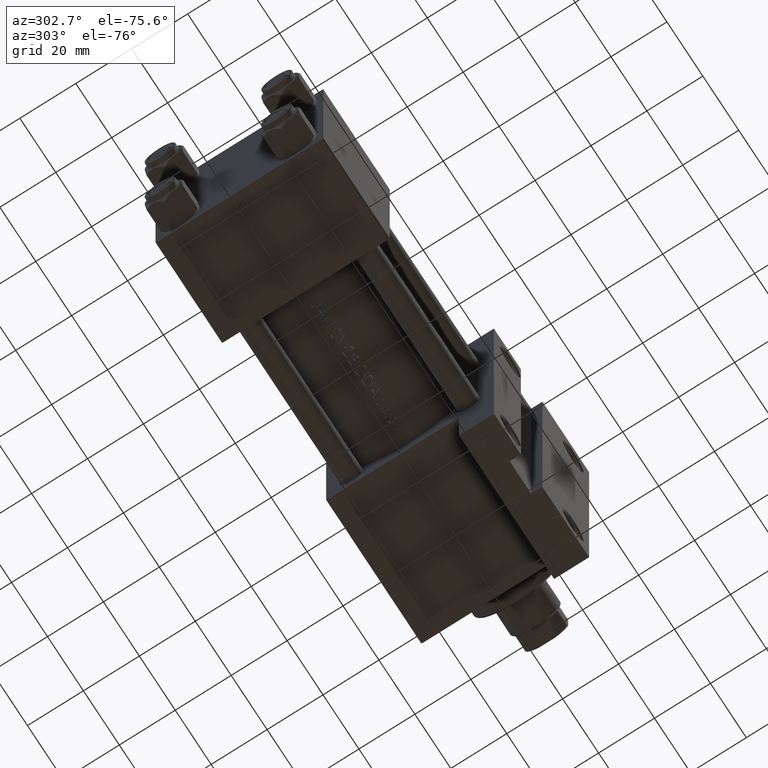
[diagram: clean part render]
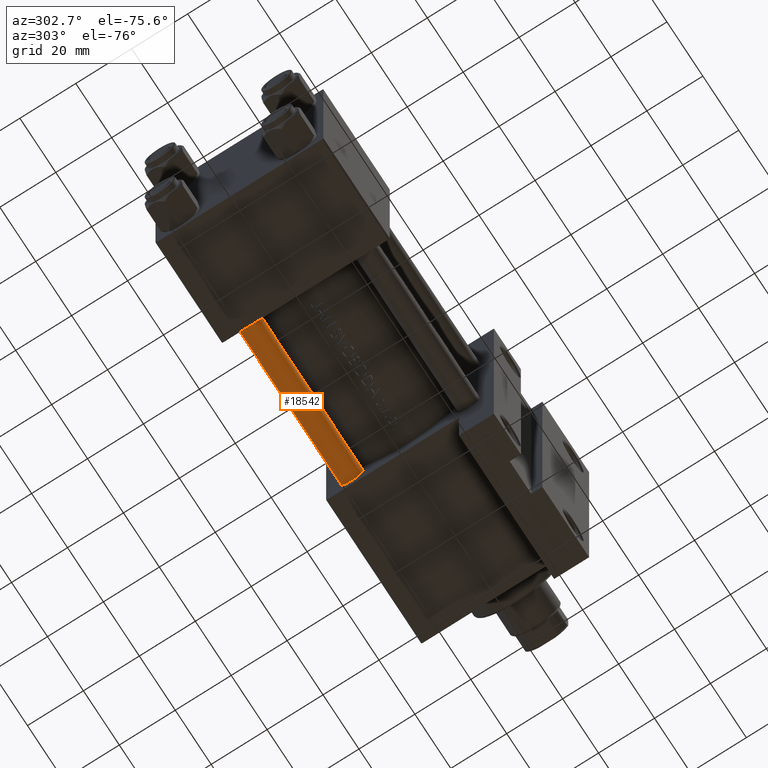
[diagram: same view with one face highlighted and labeled with its STEP entity id]
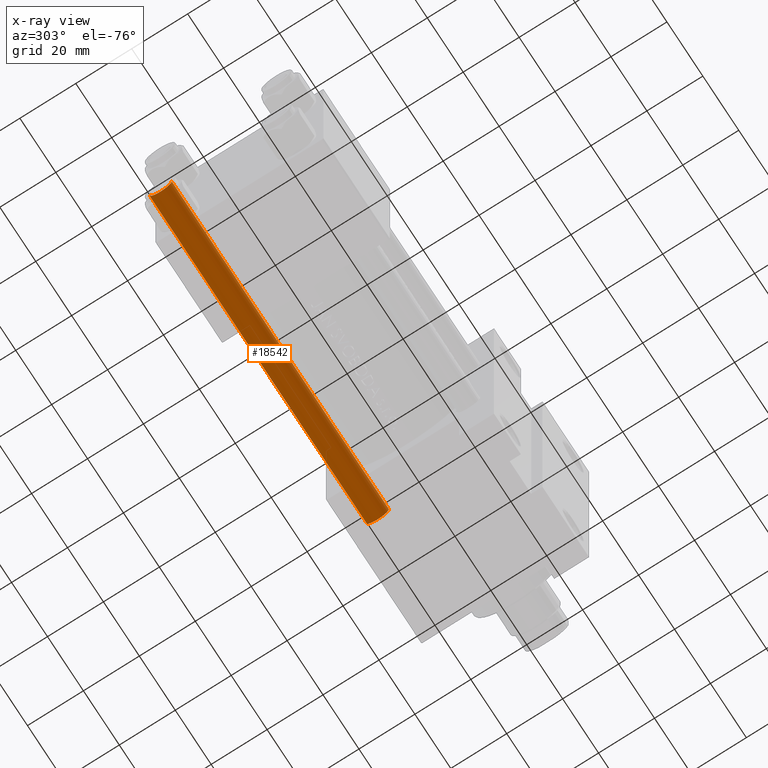
[diagram: x-ray of the same camera — body ghosted, the highlighted face saturated]
A machine part, auxiliary view. The second image highlights one B-rep face of the part: STEP entity #18542.
The next image is the same camera in x-ray: the body ghosted, the highlighted face saturated — about 0% of this face is hidden behind the body in this view.
In plain terms, the highlighted cylindrical surface (edge-blend (fillet) strip) has radius 4 mm, axis along (-1, -0, 0).
Its self-contained STEP definition (entity closure, byte-faithful):
#1103 = DIRECTION ( 'NONE',  ( 0.000000000000000000, 0.000000000000000000, -1.000000000000000000 ) ) ;
#3397 = ORIENTED_EDGE ( 'NONE', *, *, #33199, .T. ) ;
#5162 = EDGE_CURVE ( 'NONE', #21765, #6072, #39354, .T. ) ;
#5607 = CARTESIAN_POINT ( 'NONE',  ( 4.000000000000000000, 4.898587196589411843E-16, 122.0000000000000000 ) ) ;
#6072 = VERTEX_POINT ( 'NONE', #42812 ) ;
#7824 = FACE_OUTER_BOUND ( 'NONE', #29273, .T. ) ;
#8300 = DIRECTION ( 'NONE',  ( -1.000000000000000000, 0.000000000000000000, 0.000000000000000000 ) ) ;
#9790 = DIRECTION ( 'NONE',  ( -0.000000000000000000, -0.000000000000000000, -1.000000000000000000 ) ) ;
#12225 = CARTESIAN_POINT ( 'NONE',  ( 0.000000000000000000, 0.000000000000000000, 121.5000000000000426 ) ) ;
#12767 = DIRECTION ( 'NONE',  ( -0.000000000000000000, -0.000000000000000000, 1.000000000000000000 ) ) ;
#15396 = EDGE_CURVE ( 'NONE', #21765, #41619, #38304, .T. ) ;
#17067 = AXIS2_PLACEMENT_3D ( 'NONE', #12225, #1103, #31188 ) ;
#18542 = ADVANCED_FACE ( 'NONE', ( #7824 ), #26773, .T. ) ;
#19502 = EDGE_CURVE ( 'NONE', #41619, #37882, #28198, .T. ) ;
#21158 = ORIENTED_EDGE ( 'NONE', *, *, #15396, .T. ) ;
#21765 = VERTEX_POINT ( 'NONE', #26932 ) ;
#24095 = CARTESIAN_POINT ( 'NONE',  ( 0.000000000000000000, 0.000000000000000000, 0.5000000000000559552 ) ) ;
#24862 = ORIENTED_EDGE ( 'NONE', *, *, #5162, .F. ) ;
#25242 = CARTESIAN_POINT ( 'NONE',  ( -4.000000000000000000, 0.000000000000000000, 0.5000000000000559552 ) ) ;
#26773 = CYLINDRICAL_SURFACE ( 'NONE', #28229, 4.000000000000000000 ) ;
#26932 = CARTESIAN_POINT ( 'NONE',  ( 4.000000000000000000, 4.898587196589411843E-16, 121.5000000000000426 ) ) ;
#28198 = LINE ( 'NONE', #43702, #39254 ) ;
#28229 = AXIS2_PLACEMENT_3D ( 'NONE', #30462, #45238, #8300 ) ;
#29273 = EDGE_LOOP ( 'NONE', ( #24862, #21158, #39620, #3397 ) ) ;
#30462 = CARTESIAN_POINT ( 'NONE',  ( 0.000000000000000000, 0.000000000000000000, 122.0000000000000000 ) ) ;
#31021 = VECTOR ( 'NONE', #9790, 1000.000000000000000 ) ;
#31188 = DIRECTION ( 'NONE',  ( 1.000000000000000000, 0.000000000000000000, 0.000000000000000000 ) ) ;
#33199 = EDGE_CURVE ( 'NONE', #37882, #6072, #48269, .T. ) ;
#37882 = VERTEX_POINT ( 'NONE', #25242 ) ;
#38081 = AXIS2_PLACEMENT_3D ( 'NONE', #24095, #12767, #42346 ) ;
#38304 = CIRCLE ( 'NONE', #17067, 4.000000000000000000 ) ;
#39254 = VECTOR ( 'NONE', #43458, 1000.000000000000000 ) ;
#39354 = LINE ( 'NONE', #5607, #31021 ) ;
#39620 = ORIENTED_EDGE ( 'NONE', *, *, #19502, .T. ) ;
#40240 = CARTESIAN_POINT ( 'NONE',  ( -4.000000000000000000, 0.000000000000000000, 121.5000000000000426 ) ) ;
#41619 = VERTEX_POINT ( 'NONE', #40240 ) ;
#42346 = DIRECTION ( 'NONE',  ( 1.000000000000000000, 0.000000000000000000, 0.000000000000000000 ) ) ;
#42812 = CARTESIAN_POINT ( 'NONE',  ( 4.000000000000000000, 4.898587196589411843E-16, 0.5000000000000559552 ) ) ;
#43458 = DIRECTION ( 'NONE',  ( -0.000000000000000000, -0.000000000000000000, -1.000000000000000000 ) ) ;
#43702 = CARTESIAN_POINT ( 'NONE',  ( -4.000000000000000000, 0.000000000000000000, 122.0000000000000000 ) ) ;
#45238 = DIRECTION ( 'NONE',  ( -0.000000000000000000, -0.000000000000000000, -1.000000000000000000 ) ) ;
#48269 = CIRCLE ( 'NONE', #38081, 4.000000000000000000 ) ;